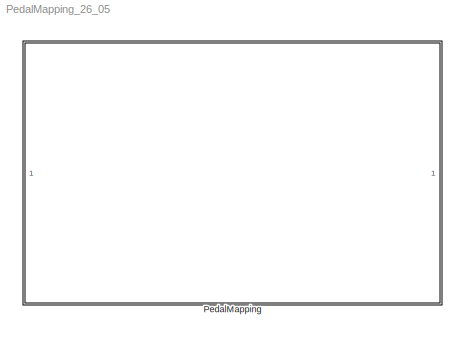
MODEL PedalMapping_26_05
KIND model
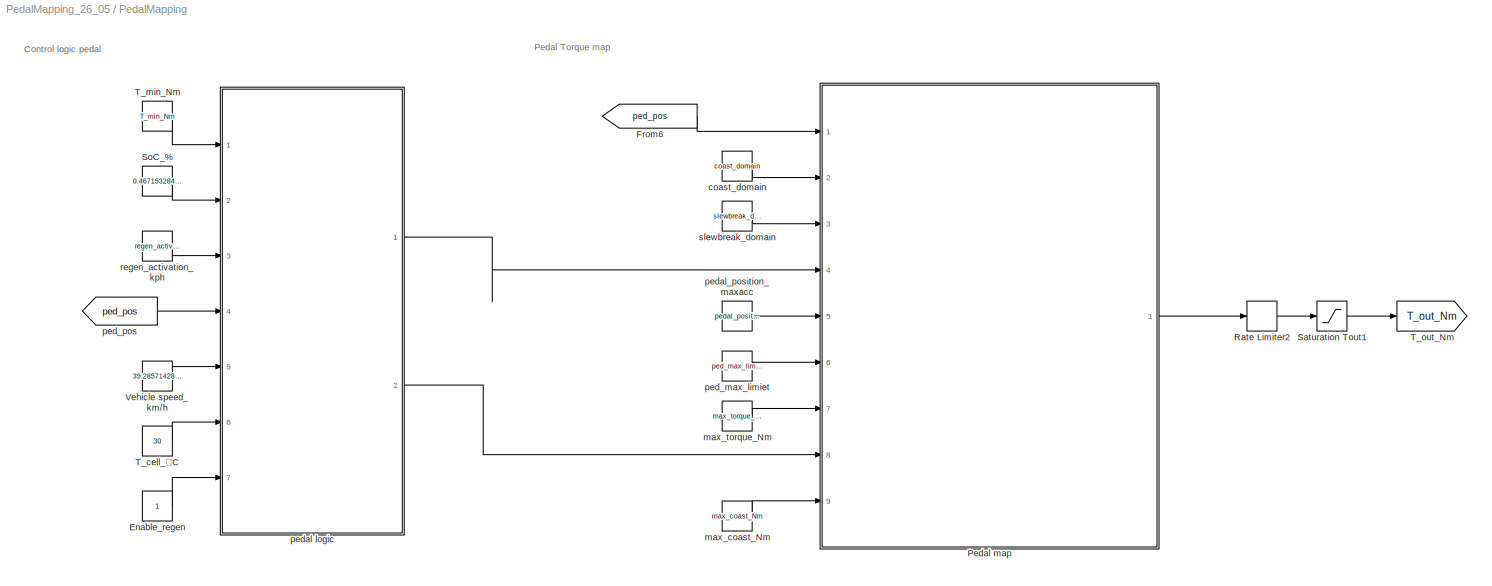
BLOCK [SubSystem] PedalMapping
  Ports = []
  RequestExecContextInheritance = off
  SID = 23
  Variant = off
BLOCK [Constant] PedalMapping/Enable_regen
  SID = 1
BLOCK [From] PedalMapping/From6
  GotoTag = ped_pos
  SID = 2
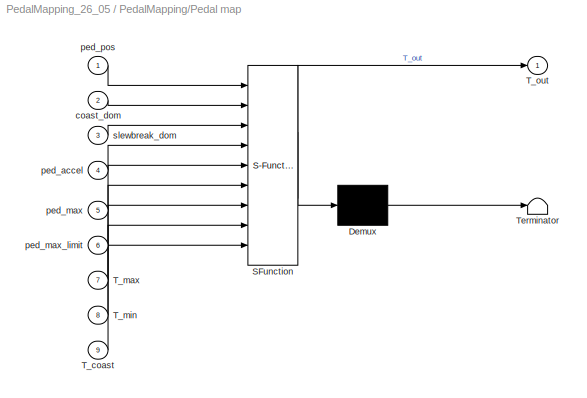
BLOCK [SubSystem] PedalMapping/Pedal map
  ErrorFcn = Stateflow.Translate.translate
  PermitHierarchicalResolution = ParametersOnly
  Ports = [9, 1]
  RequestExecContextInheritance = off
  SFBlockType = MATLAB Function
  SID = 3
  TreatAsAtomicUnit = on
  Variant = off
BLOCK [Demux] PedalMapping/Pedal map/ Demux 
  Outputs = 1
  Ports = [1, 1]
  SID = 3::17
BLOCK [S-Function] PedalMapping/Pedal map/ SFunction 
  EnableBusSupport = on
  FunctionName = sf_sfun
  PortCounts = [9 2]
  Ports = [9, 2]
  SFunctionDeploymentMode = off
  SID = 3::16
  Tag = Stateflow S-Function PedalMapping_26_05 1
BLOCK [Terminator] PedalMapping/Pedal map/ Terminator 
  SID = 3::18
BLOCK [Inport] PedalMapping/Pedal map/T_coast
  IconDisplay = Port number
  Port = 9
  SID = 3::25
BLOCK [Inport] PedalMapping/Pedal map/T_max
  IconDisplay = Port number
  Port = 7
  SID = 3::23
BLOCK [Inport] PedalMapping/Pedal map/T_min
  IconDisplay = Port number
  Port = 8
  SID = 3::24
BLOCK [Outport] PedalMapping/Pedal map/T_out
  IconDisplay = Port number
  SID = 3::5
BLOCK [Inport] PedalMapping/Pedal map/coast_dom
  IconDisplay = Port number
  Port = 2
  SID = 3::1
BLOCK [Inport] PedalMapping/Pedal map/ped_accel
  IconDisplay = Port number
  Port = 4
  SID = 3::20
BLOCK [Inport] PedalMapping/Pedal map/ped_max
  IconDisplay = Port number
  Port = 5
  SID = 3::21
BLOCK [Inport] PedalMapping/Pedal map/ped_max_limit
  IconDisplay = Port number
  Port = 6
  SID = 3::22
BLOCK [Inport] PedalMapping/Pedal map/ped_pos
  IconDisplay = Port number
  SID = 3::26
BLOCK [Inport] PedalMapping/Pedal map/slewbreak_dom
  IconDisplay = Port number
  Port = 3
  SID = 3::19
BLOCK [RateLimiter] PedalMapping/Rate Limiter2
  FallingSlewLimit = -2000
  RisingSlewLimit = 2000
  SID = 4
  SampleTimeMode = inherited
BLOCK [Saturate] PedalMapping/Saturation Tout1
  InputPortMap = u0
  LowerLimit = -40
  Ports = [1, 1]
  SID = 5
  UpperLimit = 40
BLOCK [Constant] PedalMapping/SoC_%
  SID = 7
  Value = 0.4671532846715328
BLOCK [Constant] PedalMapping/T_cell_°C
  SID = 8
  Value = 30
BLOCK [Constant] PedalMapping/T_min_Nm
  SID = 9
  Value = T_min_Nm
BLOCK [Goto] PedalMapping/T_out_Nm
  GotoTag = T_out_Nm
  SID = 10
BLOCK [Constant] PedalMapping/Vehicle speed_km//h
  SID = 11
  Value = 39.28571428571429
BLOCK [Constant] PedalMapping/coast_domain
  SID = 12
  Value = coast_domain
BLOCK [Constant] PedalMapping/max_coast_Nm
  SID = 13
  Value = max_coast_Nm
BLOCK [Constant] PedalMapping/max_torque_Nm
  SID = 14
  Value = max_torque_Nm
BLOCK [Constant] PedalMapping/ped_max_limiet
  SID = 15
  Value = ped_max_limiet
BLOCK [From] PedalMapping/ped_pos
  GotoTag = ped_pos
  SID = 16
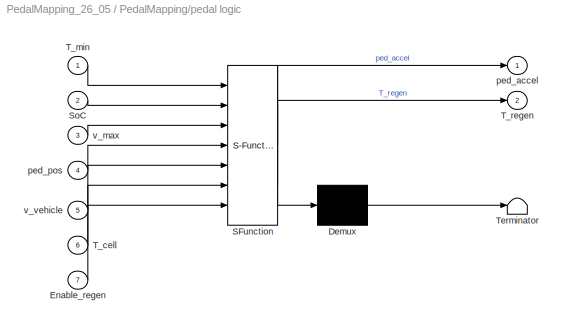
BLOCK [SubSystem] PedalMapping/pedal logic
  ErrorFcn = Stateflow.Translate.translate
  PermitHierarchicalResolution = ParametersOnly
  Ports = [7, 2]
  RequestExecContextInheritance = off
  SFBlockType = Chart
  SID = 17
  TreatAsAtomicUnit = on
  Variant = off
BLOCK [Demux] PedalMapping/pedal logic/ Demux 
  Outputs = 1
  Ports = [1, 1]
  SID = 17::74
BLOCK [S-Function] PedalMapping/pedal logic/ SFunction 
  EnableBusSupport = on
  FunctionName = sf_sfun
  PortCounts = [7 3]
  Ports = [7, 3]
  SFunctionDeploymentMode = off
  SID = 17::73
  Tag = Stateflow S-Function PedalMapping_26_05 5
BLOCK [Terminator] PedalMapping/pedal logic/ Terminator 
  SID = 17::75
BLOCK [Inport] PedalMapping/pedal logic/Enable_regen
  IconDisplay = Port number
  Port = 7
  SID = 17::85
BLOCK [Inport] PedalMapping/pedal logic/SoC
  IconDisplay = Port number
  Port = 2
  SID = 17::78
BLOCK [Inport] PedalMapping/pedal logic/T_cell
  IconDisplay = Port number
  Port = 6
  SID = 17::84
BLOCK [Inport] PedalMapping/pedal logic/T_min
  IconDisplay = Port number
  SID = 17::77
BLOCK [Outport] PedalMapping/pedal logic/T_regen
  IconDisplay = Port number
  Port = 2
  SID = 17::83
BLOCK [Outport] PedalMapping/pedal logic/ped_accel
  IconDisplay = Port number
  SID = 17::82
BLOCK [Inport] PedalMapping/pedal logic/ped_pos
  IconDisplay = Port number
  Port = 4
  SID = 17::80
BLOCK [Inport] PedalMapping/pedal logic/v_max
  IconDisplay = Port number
  Port = 3
  SID = 17::79
BLOCK [Inport] PedalMapping/pedal logic/v_vehicle
  IconDisplay = Port number
  Port = 5
  SID = 17::81
BLOCK [Constant] PedalMapping/pedal_position_maxacc
  SID = 18
  Value = pedal_position_maxacc
BLOCK [Constant] PedalMapping/regen_activation_kph
  SID = 19
  Value = regen_activation_kph
BLOCK [Constant] PedalMapping/slewbreak_domain
  SID = 20
  Value = slewbreak_domain
ANNOTATION PedalMapping: Control logic pedal
ANNOTATION PedalMapping: Pedal Torque map
LINE PedalMapping/Enable_regen:1 -> PedalMapping/pedal logic:7
LINE PedalMapping/From6:1 -> PedalMapping/Pedal map:1
LINE PedalMapping/Pedal map/ Demux :1 -> PedalMapping/Pedal map/ Terminator :1
LINE PedalMapping/Pedal map/ SFunction :1 -> PedalMapping/Pedal map/ Demux :1
LINE PedalMapping/Pedal map/ SFunction :2 -> PedalMapping/Pedal map/T_out:1
LINE PedalMapping/Pedal map/T_coast:1 -> PedalMapping/Pedal map/ SFunction :9
LINE PedalMapping/Pedal map/T_max:1 -> PedalMapping/Pedal map/ SFunction :7
LINE PedalMapping/Pedal map/T_min:1 -> PedalMapping/Pedal map/ SFunction :8
LINE PedalMapping/Pedal map/coast_dom:1 -> PedalMapping/Pedal map/ SFunction :2
LINE PedalMapping/Pedal map/ped_accel:1 -> PedalMapping/Pedal map/ SFunction :4
LINE PedalMapping/Pedal map/ped_max:1 -> PedalMapping/Pedal map/ SFunction :5
LINE PedalMapping/Pedal map/ped_max_limit:1 -> PedalMapping/Pedal map/ SFunction :6
LINE PedalMapping/Pedal map/ped_pos:1 -> PedalMapping/Pedal map/ SFunction :1
LINE PedalMapping/Pedal map/slewbreak_dom:1 -> PedalMapping/Pedal map/ SFunction :3
LINE PedalMapping/Pedal map:1 -> PedalMapping/Rate Limiter2:1
LINE PedalMapping/Rate Limiter2:1 -> PedalMapping/Saturation Tout1:1
LINE PedalMapping/Saturation Tout1:1 -> PedalMapping/T_out_Nm:1
LINE PedalMapping/SoC_%:1 -> PedalMapping/pedal logic:2
LINE PedalMapping/T_cell_°C:1 -> PedalMapping/pedal logic:6
LINE PedalMapping/T_min_Nm:1 -> PedalMapping/pedal logic:1
LINE PedalMapping/Vehicle speed_km//h:1 -> PedalMapping/pedal logic:5
LINE PedalMapping/coast_domain:1 -> PedalMapping/Pedal map:2
LINE PedalMapping/max_coast_Nm:1 -> PedalMapping/Pedal map:9
LINE PedalMapping/max_torque_Nm:1 -> PedalMapping/Pedal map:7
LINE PedalMapping/ped_max_limiet:1 -> PedalMapping/Pedal map:6
LINE PedalMapping/ped_pos:1 -> PedalMapping/pedal logic:4
LINE PedalMapping/pedal logic/ Demux :1 -> PedalMapping/pedal logic/ Terminator :1
LINE PedalMapping/pedal logic/ SFunction :1 -> PedalMapping/pedal logic/ Demux :1
LINE PedalMapping/pedal logic/ SFunction :2 -> PedalMapping/pedal logic/ped_accel:1
LINE PedalMapping/pedal logic/ SFunction :3 -> PedalMapping/pedal logic/T_regen:1
LINE PedalMapping/pedal logic/Enable_regen:1 -> PedalMapping/pedal logic/ SFunction :7
LINE PedalMapping/pedal logic/SoC:1 -> PedalMapping/pedal logic/ SFunction :2
LINE PedalMapping/pedal logic/T_cell:1 -> PedalMapping/pedal logic/ SFunction :6
LINE PedalMapping/pedal logic/T_min:1 -> PedalMapping/pedal logic/ SFunction :1
LINE PedalMapping/pedal logic/ped_pos:1 -> PedalMapping/pedal logic/ SFunction :4
LINE PedalMapping/pedal logic/v_max:1 -> PedalMapping/pedal logic/ SFunction :3
LINE PedalMapping/pedal logic/v_vehicle:1 -> PedalMapping/pedal logic/ SFunction :5
LINE PedalMapping/pedal logic:1 -> PedalMapping/Pedal map:4
LINE PedalMapping/pedal logic:2 -> PedalMapping/Pedal map:8
LINE PedalMapping/pedal_position_maxacc:1 -> PedalMapping/Pedal map:5
LINE PedalMapping/regen_activation_kph:1 -> PedalMapping/pedal logic:3
LINE PedalMapping/slewbreak_domain:1 -> PedalMapping/Pedal map:3
CHART PedalMapping/Pedal map states=1 transitions=1
  STATE_LABEL 'eML_blk_kernel()'
CHART PedalMapping/pedal logic states=4 transitions=6
  STATE_LABEL 'Driving'
  STATE_LABEL 'Disable_regen \\nentry:\\nped_accel=0.45;\\nT_regen=0;'
  STATE_LABEL 'Activate_regen\\nentry:\\nped_accel=0.45;\\nT0= -5; %Regentorque at v_lim [Nm]\\nduring:\\n% velocity dependant braking torque\\nif v_vehicle<15\\n    T_regen=T_min/(15-5)*(v_vehicle-5);\\nelseif v_vehicle<50\\n    T_regen=T_min;\\nelse\\n    T_regen=max((T_min-T0)/(50-100)*(v_vehicle-100)+T0,0);\\nend\\n'
  STATE_LABEL 'Standstill\\nentry:\\nT_regen=0;\\nped_accel=0.1; %\\nduring:\\n%velocity dependent coasting until v_max\\nif ped_pos>0.1\\n    ped_accel=min(ped_pos* (v_vehicle/v_max),0.45); %Offset of 0.1\\nend\\nexit:\\nped_accel=0.45;\\n'
